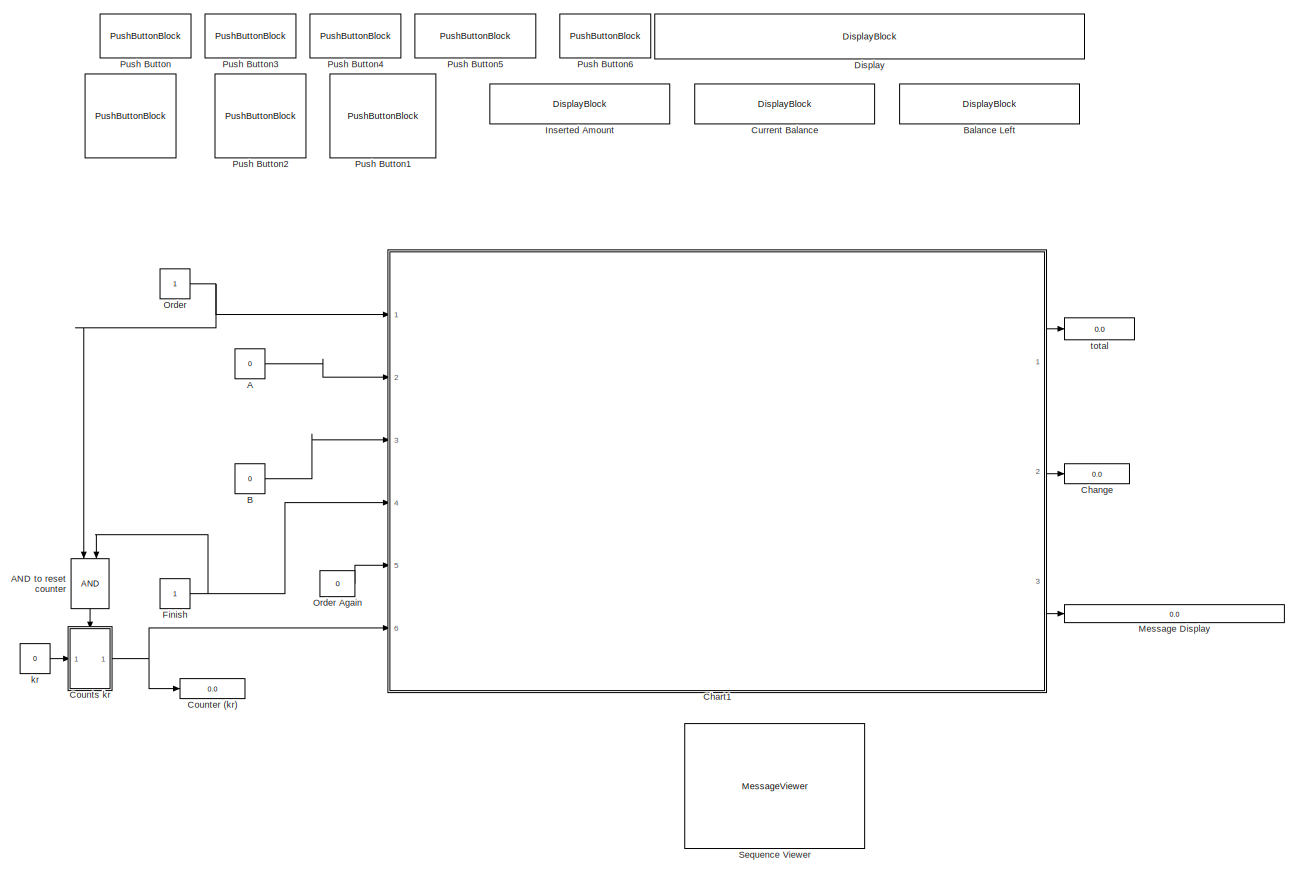
[diagram: root canvas - part 1/1, most of the canvas]
MODEL slx_b670ba789e05
KIND model
CONFIG AbsTol = auto
CONFIG EnableMultiTasking = off
CONFIG FixedStep = auto
CONFIG MaxStep = auto
CONFIG MinStep = auto
CONFIG RelTol = 1e-3
CONFIG SampleTimeConstraint = Unconstrained
CONFIG Solver = VariableStepAuto
CONFIG SolverName = VariableStepAuto
CONFIG StartTime = 0.0
CONFIG StopTime = 1500
BLOCK [PushButtonBlock]  
  ButtonText = 1kr
BLOCK [Constant] A
  Value = 0
BLOCK [Logic] AND to reset counter
  AllPortsSameDT = off
  IconShape = distinctive
  NameLocation = left
  OutDataTypeStr = boolean
  Ports = [2, 1]
BLOCK [Constant] B
  Value = 0
BLOCK [DisplayBlock] Balance Left
  Format = short
  LabelPosition = Hide
  Transparency = 1
BLOCK [Display] Change
  Decimation = 1
  Ports = [1]
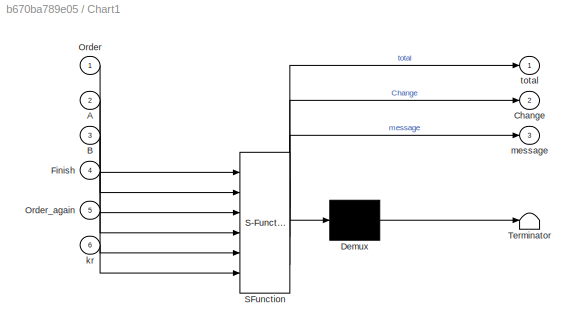
BLOCK [SubSystem] Chart1
  ErrorFcn = Stateflow.Translate.translate
  PermitHierarchicalResolution = ExplicitOnly
  Ports = [6, 3]
  RequestExecContextInheritance = off
  SFBlockType = Chart
  TreatAsAtomicUnit = on
BLOCK [Demux] Chart1/ Demux 
  Outputs = 1
  Ports = [1, 1]
BLOCK [S-Function] Chart1/ SFunction 
  EnableBusSupport = on
  FunctionName = sf_sfun
  PortCounts = [6 4]
  Ports = [6, 4]
  SFcnIsStateOwnerBlock = off
  SFunctionDeploymentMode = off
  Tag = Stateflow S-Function 1
BLOCK [Terminator] Chart1/ Terminator 
BLOCK [Inport] Chart1/A
  Port = 2
BLOCK [Inport] Chart1/B
  Port = 3
BLOCK [Outport] Chart1/Change
  Port = 2
BLOCK [Inport] Chart1/Finish
  Port = 4
BLOCK [Inport] Chart1/Order
BLOCK [Inport] Chart1/Order_again
  Port = 5
BLOCK [Inport] Chart1/kr
  Port = 6
BLOCK [Outport] Chart1/message
  Port = 3
BLOCK [Outport] Chart1/total
BLOCK [Display] Counter (kr)
  Decimation = 1
  Ports = [1]
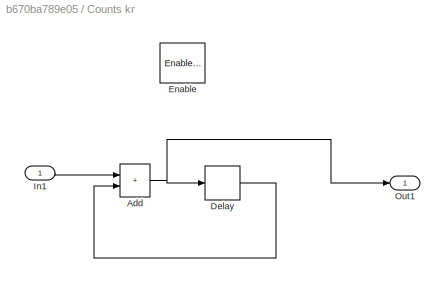
BLOCK [SubSystem] Counts kr
  Ports = [1, 1, 1]
  RequestExecContextInheritance = off
BLOCK [Sum] Counts kr/Add
  IconShape = rectangular
  Ports = [2, 1]
BLOCK [Delay] Counts kr/Delay
  DelayLength = 1
  InputPortMap = u0
  Ports = [1, 1]
BLOCK [EnablePort] Counts kr/Enable
  Ports = []
  StatesWhenEnabling = reset
BLOCK [Inport] Counts kr/In1
BLOCK [Outport] Counts kr/Out1
BLOCK [DisplayBlock] Current Balance
  Format = short
  LabelPosition = Hide
  Transparency = 1
BLOCK [DisplayBlock] Display
  Format = short
  LabelPosition = Hide
  Transparency = 1
BLOCK [Constant] Finish
BLOCK [DisplayBlock] Inserted Amount
  Format = short
  LabelPosition = Hide
  Transparency = 1
BLOCK [Display] Message Display
  Decimation = 1
  NameLocation = top
  Ports = [1]
BLOCK [Constant] Order
BLOCK [Constant] Order Again
  Value = 0
BLOCK [PushButtonBlock] Push Button
  ButtonText = Order
  OnValue = 0
BLOCK [PushButtonBlock] Push Button1
  ButtonText = 10kr
  OnValue = 10
BLOCK [PushButtonBlock] Push Button2
  ButtonText = 5kr
  OnValue = 5
BLOCK [PushButtonBlock] Push Button3
  ButtonText = A
  OnValue = 100
BLOCK [PushButtonBlock] Push Button4
  ButtonText = B
  OnValue = 100
BLOCK [PushButtonBlock] Push Button5
  ButtonText = Order_again
BLOCK [PushButtonBlock] Push Button6
  ButtonText = Finish
  OnValue = 0
BLOCK [MessageViewer] Sequence Viewer
  History = 1000
  SavedRootId = #
BLOCK [Constant] kr
  Value = 0
BLOCK [Display] total
  Decimation = 1
  Ports = [1]
LINE A:1 -> Chart1:2
LINE AND to reset counter:1 -> Counts kr:enable
LINE B:1 -> Chart1:3
LINE Chart1:1 -> total:1
LINE Chart1:2 -> Change:1
LINE Chart1:3 -> Message Display:1
NET Counts kr/Add:1 -> Counts kr/Delay:1, Counts kr/Out1:1
LINE Counts kr/Delay:1 -> Counts kr/Add:2
LINE Counts kr/In1:1 -> Counts kr/Add:1
NET Counts kr:1 -> Chart1:6, Counter (kr):1
NET Finish:1 -> AND to reset counter:2, Chart1:4
LINE Order Again:1 -> Chart1:5
NET Order:1 -> AND to reset counter:1, Chart1:1
LINE kr:1 -> Counts kr:1
note: NET lines group one-source signal fan-out (src -> all destinations, sorted); 1:1 wires keep LINE
CHART Chart1 states=8 transitions=16
  STATE_LABEL 'CalChangeA\nChange = total-8;\nmessage = "Finish to collect change or Order more snacks";'
  STATE_LABEL 'A\nmessage = "A selected";'
  STATE_LABEL 'IdleState\nen: coins=0; Change=0; total=0;\n message = "Welcome! Insert coins";'
  STATE_LABEL 'InsertingState\ndu: coins = kr;\nmessage = "Insert coins and press order";\nex: total = total + coins;\n'
  STATE_LABEL 'OrdAgain\ntotal=Change;'
  STATE_LABEL 'OrderState\nmessage="Select A or B";'
  STATE_LABEL 'CalChangeB\nChange = total-6;\nmessage = "Finish to collect change or order more snacks";'
  STATE_LABEL 'B\nmessage = "B selected";'
CHART  states=0 transitions=0
